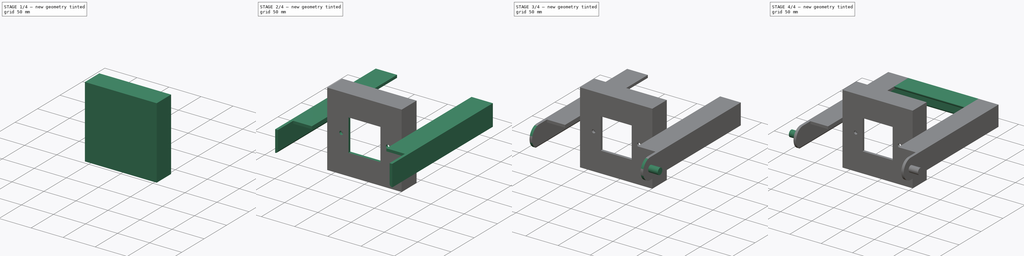
[diagram: build sequence overview — one tinted view per stage of 4, left to right]
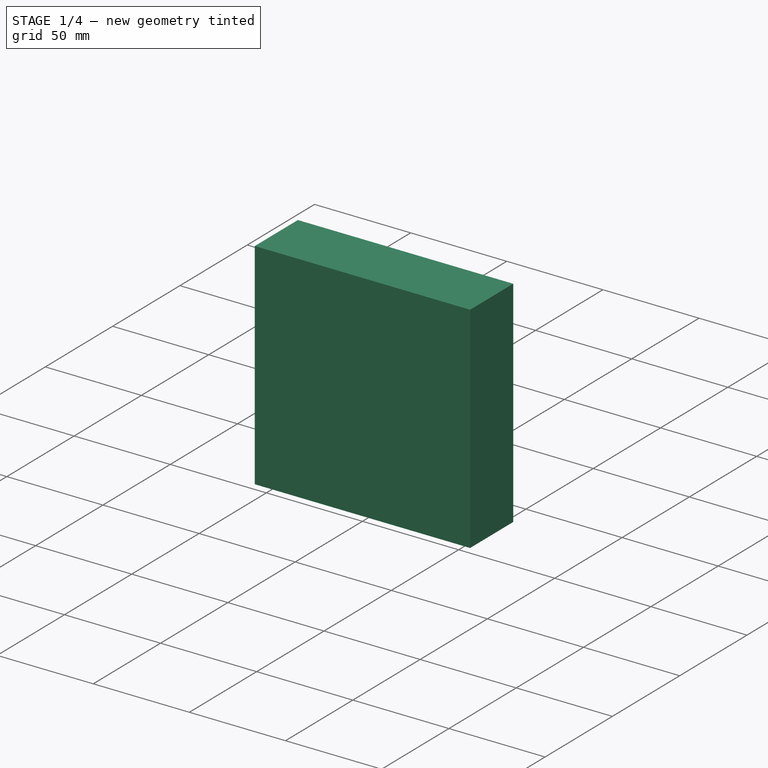
[diagram: stage 1 of 4 — iso view after this stage's code; geometry added in this stage tinted green]
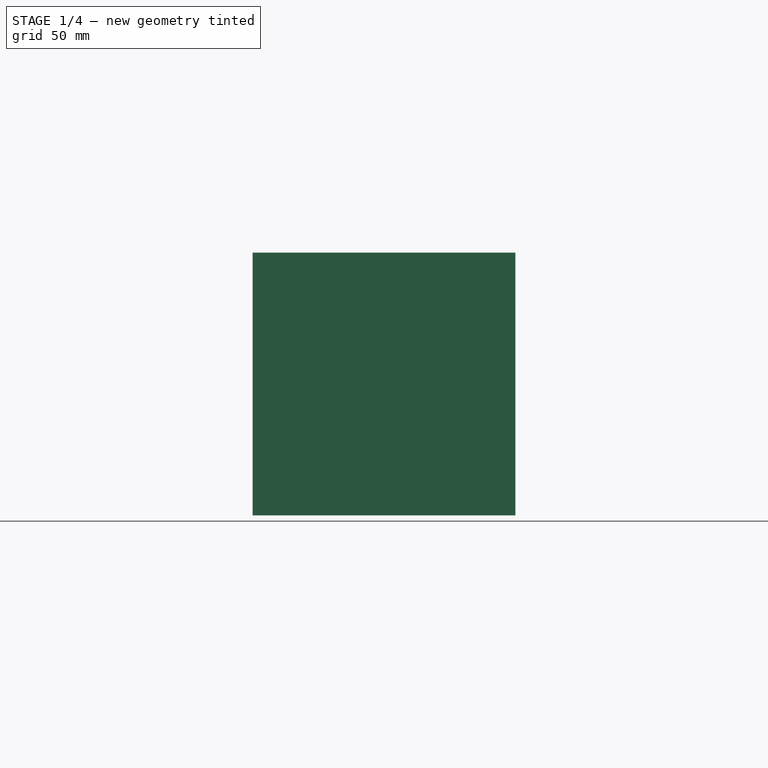
[diagram: stage 1 of 4 — front view after this stage's code; geometry added in this stage tinted green]
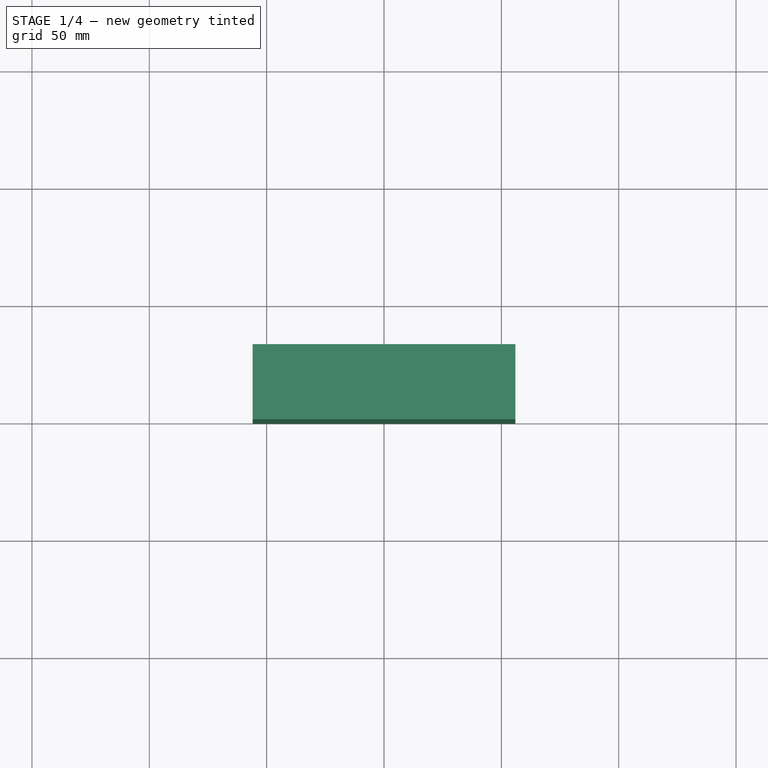
[diagram: stage 1 of 4 — top view after this stage's code; geometry added in this stage tinted green]
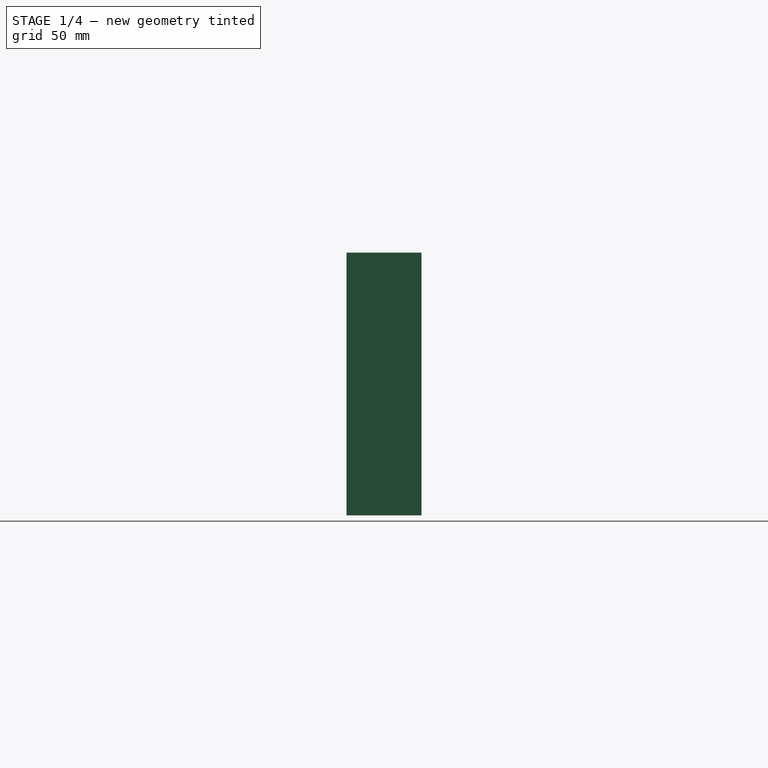
[diagram: stage 1 of 4 — right view after this stage's code; geometry added in this stage tinted green]
FCSTD DOCUMENT  (FreeCAD 0.19R)
Label: frame
License: All rights reserved
LicenseURL: http://en.wikipedia.org/wiki/All_rights_reserved
objects: Sketcher::SketchObject×10, PartDesign::Pad×6, PartDesign::CoordinateSystem×6, PartDesign::Pocket×4, PartDesign::Body×1
note: 37 computed .brp shape members not serialized (recipe doc carries the construction recipe); baked Part::Feature solids carry a one-line shape summary decoded from their .brp

FEATURE [Sketcher::SketchObject] Sketch
  FullyConstrained = true
  MapMode = 5
  Support = -> [XY_Plane]
  sketch-geometry (8):
    g0: LineSegment StartX=-56 StartY=32 StartZ=0 EndX=-56 EndY=0 EndZ=0
    g1: LineSegment StartX=56 StartY=32 StartZ=0 EndX=56 EndY=0 EndZ=0
    g2: LineSegment StartX=56 StartY=0 StartZ=0 EndX=-56 EndY=0 EndZ=0
    g3: LineSegment StartX=52 StartY=28 StartZ=0 EndX=52 EndY=4 EndZ=0
    g4: LineSegment StartX=52 StartY=4 StartZ=0 EndX=-52 EndY=4 EndZ=0
    g5: LineSegment StartX=-52 StartY=4 StartZ=0 EndX=-52 EndY=28 EndZ=0
    g6: ArcOfCircle CenterX=-56 CenterY=28 CenterZ=0 NormalX=0 NormalY=0 NormalZ=1 AngleXU=0 Radius=4 StartAngle=-3.64e-14 EndAngle=1.5708
    g7: ArcOfCircle CenterX=56 CenterY=28 CenterZ=0 NormalX=0 NormalY=0 NormalZ=1 AngleXU=0 Radius=4 StartAngle=1.5708 EndAngle=3.14159
  constraints (24):
    c: PointOnObject(g0,g-1)
    c: Vertical(g0)
    c: PointOnObject(g1,g-1)
    c: Vertical(g1)
    c: Coincident(g2,g1)
    c: Vertical(g3)
    c: Coincident(g4,g3)
    c: Horizontal(g4)
    c: Vertical(g5)
    c: DistanceX(g0,g1) = 112
    c: Symmetric(g0,g1,g-2)
    c: DistanceX(g3,g1) = 4
    c: DistanceY(g2,g4) = 4
    c: Symmetric(g5,g3,g-2)
    c: Coincident(g4,g5)
    c: Coincident(g2,g0)
    c: DistanceY(g4,g5) = 24
    c: DistanceY(g0,g0) = 32
    c: PointOnObject(g6,g0)
    c: Coincident(g6,g5)
    c: Coincident(g6,g0)
    c: PointOnObject(g7,g1)
    c: Coincident(g7,g3)
    c: Coincident(g7,g1)
FEATURE [PartDesign::Pad] Pad
  Direction = (1,1,1)
  Length = 112
  Length2 = 100
  Profile = -> Sketch
  Type = 0
FEATURE [Sketcher::SketchObject] Sketch001
  FullyConstrained = true
  MapMode = 5
  Placement = pos=(56,0,0) rot=(0.57735,0.57735,0.57735;2.0944rad)
  Support = -> [Pad]
  sketch-geometry (8):
    g0: LineSegment StartX=0 StartY=112 StartZ=0 EndX=32 EndY=112 EndZ=0
    g1: LineSegment StartX=0 StartY=108 StartZ=0 EndX=28 EndY=108 EndZ=0
    g2: LineSegment StartX=0 StartY=108 StartZ=0 EndX=0 EndY=112 EndZ=0
    g3: ArcOfCircle CenterX=28 CenterY=112 CenterZ=0 NormalX=0 NormalY=0 NormalZ=1 AngleXU=0 Radius=4 StartAngle=4.71239 EndAngle=6.28319
    g4: LineSegment StartX=0 StartY=0 StartZ=0 EndX=32 EndY=0 EndZ=0
    g5: LineSegment StartX=0 StartY=0 StartZ=0 EndX=0 EndY=4 EndZ=0
    g6: LineSegment StartX=0 StartY=4 StartZ=0 EndX=28 EndY=4 EndZ=0
    g7: ArcOfCircle CenterX=28 CenterY=0 CenterZ=0 NormalX=0 NormalY=0 NormalZ=1 AngleXU=0 Radius=4 StartAngle=0 EndAngle=1.5708
  constraints (25):
    c: PointOnObject(g0,g-2)
    c: Horizontal(g0)
    c: PointOnObject(g1,g-2)
    c: Horizontal(g1)
    c: Coincident(g2,g1)
    c: Coincident(g2,g0)
    c: DistanceX(g0,g0) = 32
    c: DistanceX(g1,g1) = 28
    c: DistanceY(g1,g0) = 4
    c: DistanceY(g-1,g0) = 112
    c: PointOnObject(g3,g0)
    c: Coincident(g3,g0)
    c: Coincident(g3,g1)
    c: Coincident(g4,g-1)
    c: PointOnObject(g4,g-1)
    c: DistanceX(g4,g4) = 32
    c: Coincident(g5,g4)
    c: PointOnObject(g5,g-2)
    c: Coincident(g6,g5)
    c: Horizontal(g6)
    c: DistanceY(g4,g5) = 4
    c: DistanceX(g5,g6) = 28
    c: PointOnObject(g7,g4)
    c: Coincident(g7,g6)
    c: Coincident(g7,g4)
FEATURE [PartDesign::Pad] Pad001
  BaseFeature = -> Pad
  Direction = (1,1,1)
  Length = 112
  Length2 = 100
  Profile = -> Sketch001
  Reversed = true
  Type = 0
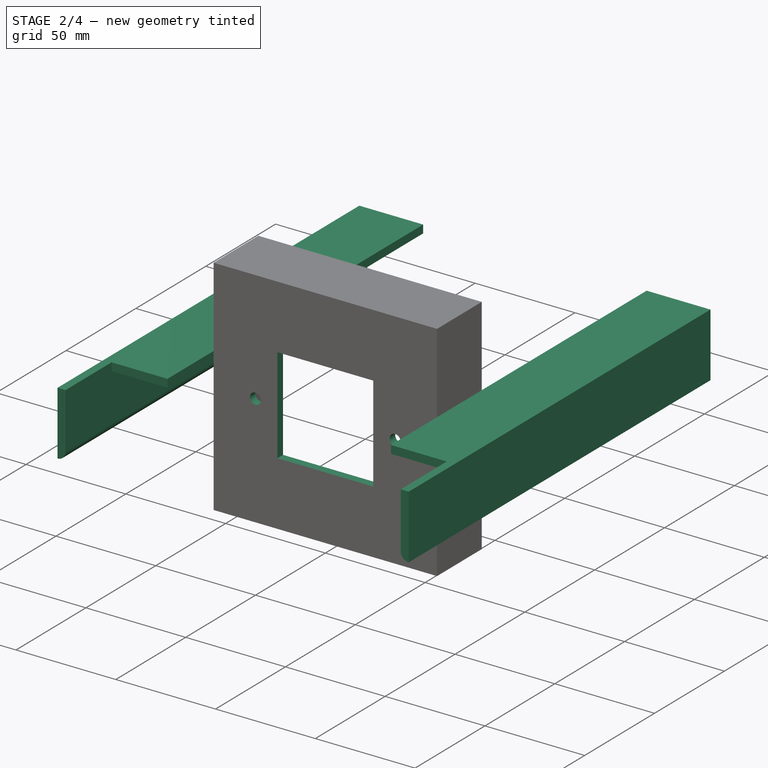
[diagram: stage 2 of 4 — iso view after this stage's code; geometry added in this stage tinted green]
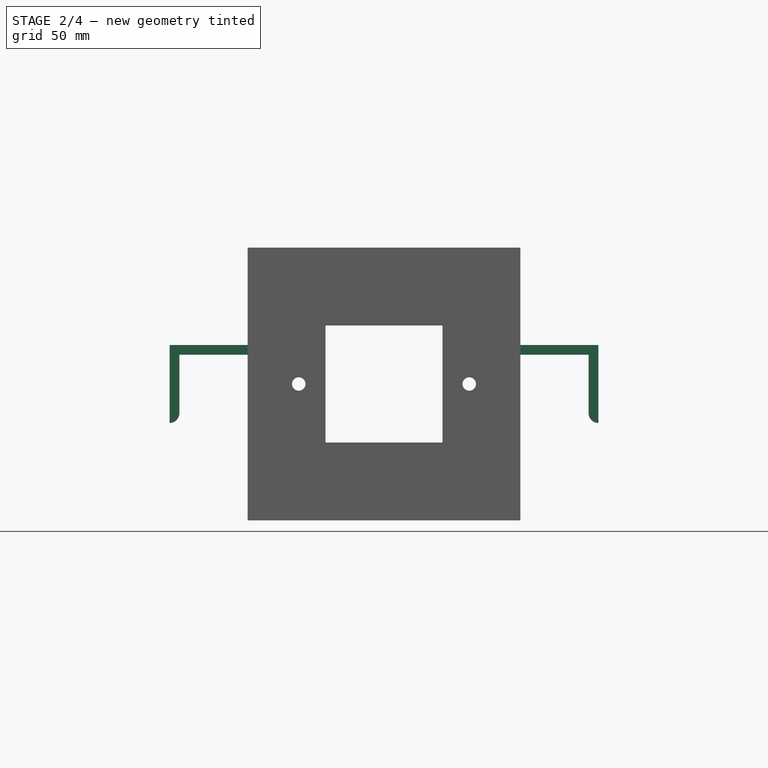
[diagram: stage 2 of 4 — front view after this stage's code; geometry added in this stage tinted green]
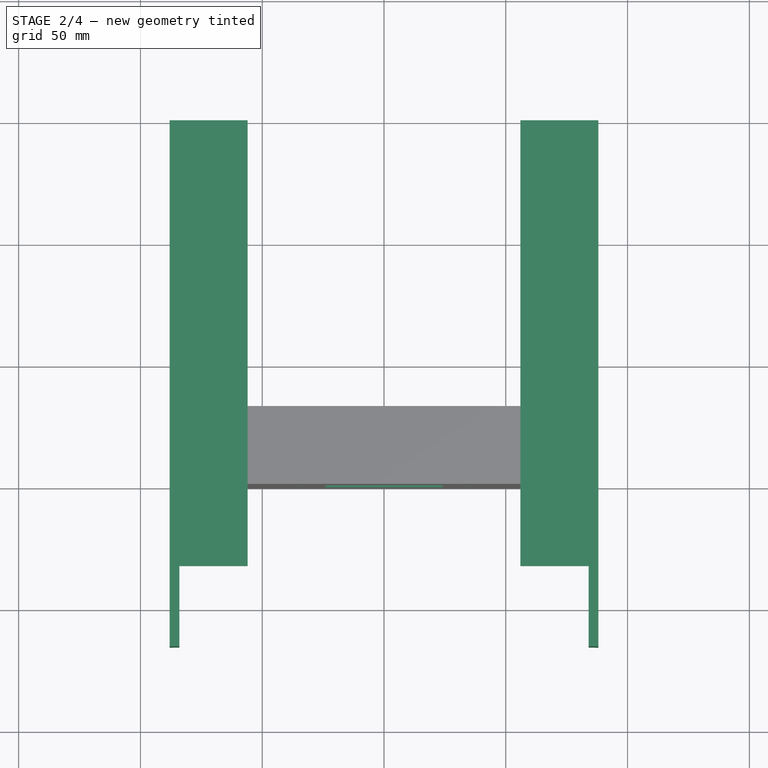
[diagram: stage 2 of 4 — top view after this stage's code; geometry added in this stage tinted green]
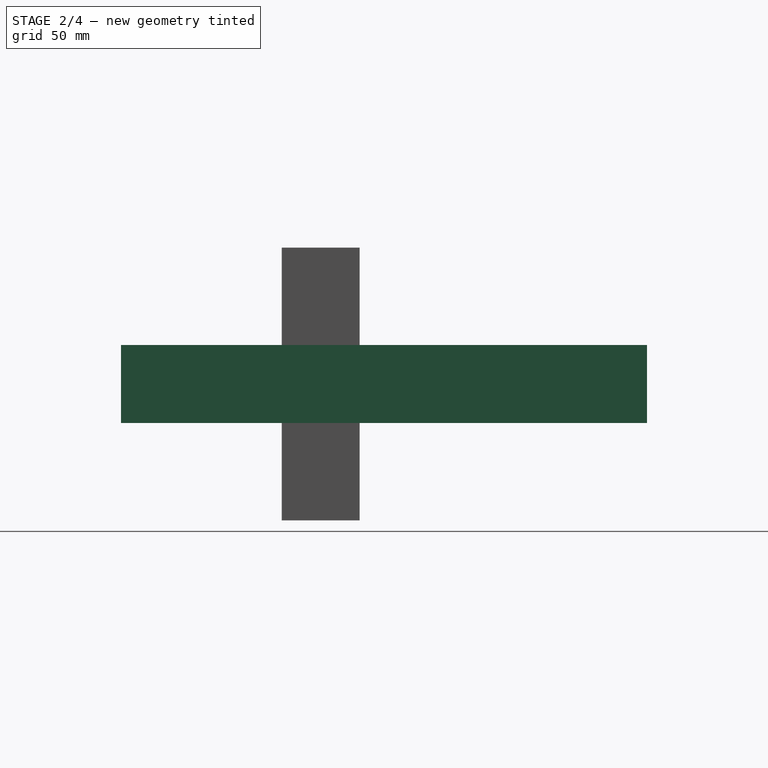
[diagram: stage 2 of 4 — right view after this stage's code; geometry added in this stage tinted green]
FEATURE [Sketcher::SketchObject] Sketch002
  ExternalGeometry = -> [Pad001]
  FullyConstrained = true
  MapMode = 5
  Placement = pos=(0,0,0) rot=(1,0,0;1.5708rad)
  Support = -> [Pad001]
  sketch-geometry (6):
    g0: LineSegment StartX=-24 StartY=80 StartZ=0 EndX=24 EndY=80 EndZ=0
    g1: LineSegment StartX=24 StartY=80 StartZ=0 EndX=24 EndY=32 EndZ=0
    g2: LineSegment StartX=24 StartY=32 StartZ=0 EndX=-24 EndY=32 EndZ=0
    g3: LineSegment StartX=-24 StartY=32 StartZ=0 EndX=-24 EndY=80 EndZ=0
    g4: Circle CenterX=-35 CenterY=56 CenterZ=0 NormalX=0 NormalY=0 NormalZ=1 AngleXU=0 Radius=2.75
    g5: Circle CenterX=35 CenterY=56 CenterZ=0 NormalX=0 NormalY=0 NormalZ=1 AngleXU=0 Radius=2.75
  constraints (16):
    c: Coincident(g0,g1)
    c: Coincident(g1,g2)
    c: Coincident(g2,g3)
    c: Coincident(g3,g0)
    c: Horizontal(g0)
    c: Vertical(g1)
    c: Vertical(g3)
    c: DistanceX(g1,g-4) = 32
    c: DistanceY(g-4,g2) = 32
    c: Symmetric(g2,g1,g-2)
    c: Equal(g2,g3)
    c: Equal(g5,g4)
    c: Diameter(g5) = 5.5
    c: Symmetric(g5,g4,g-2)
    c: DistanceX(g4,g5) = 70
    c: DistanceY(g-4,g4) = 56
FEATURE [PartDesign::Pocket] Pocket
  BaseFeature = -> Pad001
  Length = 5
  Length2 = 100
  Profile = -> Sketch002
  Type = 1
FEATURE [PartDesign::CoordinateSystem] LCS_hole1
  AttacherType = Attacher::AttachEngine3D
  MapMode = 11
  Placement = pos=(-35,4,56) rot=(0.57735,-0.57735,0.57735;2.0944rad)
  Support = -> [Pocket]
FEATURE [PartDesign::CoordinateSystem] LCS_hole2
  AttacherType = Attacher::AttachEngine3D
  MapMode = 11
  Placement = pos=(35,4,56) rot=(0.57735,-0.57735,0.57735;2.0944rad)
  Support = -> [Pocket]
FEATURE [PartDesign::CoordinateSystem] LCS_1
  AttacherType = Attacher::AttachEngine3D
  MapMode = 7
  Placement = pos=(56,0,0) rot=(0.57735,0.57735,0.57735;2.0944rad)
  Support = -> [Pocket]
FEATURE [PartDesign::CoordinateSystem] LCS_front1
  AttacherType = Attacher::AttachEngine3D
  MapMode = 11
  Placement = pos=(-35,0,56) rot=(0.57735,-0.57735,0.57735;2.0944rad)
  Support = -> [Pocket]
FEATURE [PartDesign::CoordinateSystem] LCS_front2
  AttacherType = Attacher::AttachEngine3D
  MapMode = 11
  Placement = pos=(35,0,56) rot=(0.57735,-0.57735,0.57735;2.0944rad)
  Support = -> [Pocket]
FEATURE [Sketcher::SketchObject] Sketch003
  ExternalGeometry = -> [Pocket]
  FullyConstrained = true
  MapMode = 5
  Placement = pos=(0,0,0) rot=(1,0,0;1.5708rad)
  Support = -> [Pocket]
  sketch-geometry (12):
    g0: LineSegment StartX=56 StartY=72 StartZ=0 EndX=56 EndY=68 EndZ=0
    g1: LineSegment StartX=-56 StartY=72 StartZ=0 EndX=-56 EndY=68 EndZ=0
    g2: LineSegment StartX=-56 StartY=72 StartZ=0 EndX=-88 EndY=72 EndZ=0
    g3: LineSegment StartX=-88 StartY=72 StartZ=0 EndX=-88 EndY=40 EndZ=0
    g4: LineSegment StartX=56 StartY=72 StartZ=0 EndX=88 EndY=72 EndZ=0
    g5: LineSegment StartX=88 StartY=72 StartZ=0 EndX=88 EndY=40 EndZ=0
    g6: LineSegment StartX=56 StartY=68 StartZ=0 EndX=84 EndY=68 EndZ=0
    g7: LineSegment StartX=84 StartY=68 StartZ=0 EndX=84 EndY=44 EndZ=0
    g8: LineSegment StartX=-56 StartY=68 StartZ=0 EndX=-84 EndY=68 EndZ=0
    g9: LineSegment StartX=-84 StartY=68 StartZ=0 EndX=-84 EndY=44 EndZ=0
    g10: ArcOfCircle CenterX=-88 CenterY=44 CenterZ=0 NormalX=0 NormalY=0 NormalZ=1 AngleXU=0 Radius=4 StartAngle=4.71239 EndAngle=6.28319
    g11: ArcOfCircle CenterX=88 CenterY=44 CenterZ=0 NormalX=0 NormalY=0 NormalZ=1 AngleXU=0 Radius=4 StartAngle=3.14159 EndAngle=4.71239
  constraints (37):
    c: PointOnObject(g0,g-3)
    c: PointOnObject(g0,g-3)
    c: PointOnObject(g1,g-4)
    c: Coincident(g2,g1)
    c: Horizontal(g2)
    c: Coincident(g3,g2)
    c: Vertical(g3)
    c: Coincident(g4,g0)
    c: Horizontal(g4)
    c: Coincident(g5,g4)
    c: Vertical(g5)
    c: Horizontal(g6)
    c: Coincident(g7,g6)
    c: Vertical(g7)
    c: Coincident(g8,g1)
    c: Horizontal(g8)
    c: Coincident(g9,g8)
    c: Vertical(g9)
    c: Coincident(g0,g6)
    c: Equal(g0,g1)
    c: DistanceY(g1,g1) = 4
    c: DistanceX(g7,g5) = 4
    c: Equal(g4,g5)
    c: Equal(g5,g2)
    c: Equal(g2,g3)
    c: DistanceY(g3,g2) = 32
    c: DistanceX(g3,g9) = 4
    c: DistanceY(g9,g8) = 24
    c: DistanceY(g1,g-5) = 40
    c: Symmetric(g1,g0,g-2)
    c: Equal(g9,g7)
    c: PointOnObject(g10,g3)
    c: Coincident(g10,g9)
    c: Coincident(g10,g3)
    c: PointOnObject(g11,g5)
    c: Coincident(g11,g5)
    c: Coincident(g11,g7)
FEATURE [PartDesign::Pad] Pad002
  BaseFeature = -> Pocket
  Direction = (1,1,1)
  Length = 66
  Length2 = 150
  Profile = -> Sketch003
  Type = 4
FEATURE [Sketcher::SketchObject] Sketch004
  ExternalGeometry = -> [Pad002]
  FullyConstrained = true
  MapMode = 5
  Placement = pos=(0,1.58e-14,72) rot=(0,0,1;0rad)
  Support = -> [Pad002]
  sketch-geometry (8):
    g0: LineSegment StartX=56 StartY=-66 StartZ=0 EndX=84 EndY=-66 EndZ=0
    g1: LineSegment StartX=84 StartY=-66 StartZ=0 EndX=84 EndY=-33 EndZ=0
    g2: LineSegment StartX=84 StartY=-33 StartZ=0 EndX=56 EndY=-33 EndZ=0
    g3: LineSegment StartX=56 StartY=-33 StartZ=0 EndX=56 EndY=-66 EndZ=0
    g4: LineSegment StartX=-84 StartY=-66 StartZ=0 EndX=-56 EndY=-66 EndZ=0
    g5: LineSegment StartX=-56 StartY=-66 StartZ=0 EndX=-56 EndY=-33 EndZ=0
    g6: LineSegment StartX=-56 StartY=-33 StartZ=0 EndX=-84 EndY=-33 EndZ=0
    g7: LineSegment StartX=-84 StartY=-33 StartZ=0 EndX=-84 EndY=-66 EndZ=0
  constraints (22):
    c: Coincident(g0,g1)
    c: Coincident(g1,g2)
    c: Coincident(g2,g3)
    c: Coincident(g3,g0)
    c: Horizontal(g0)
    c: Horizontal(g2)
    c: Vertical(g1)
    c: Vertical(g3)
    c: Coincident(g0,g-4)
    c: DistanceX(g2,g1) = 28
    c: DistanceY(g0,g2) = 33
    c: Coincident(g4,g5)
    c: Coincident(g5,g6)
    c: Coincident(g6,g7)
    c: Coincident(g7,g4)
    c: Horizontal(g4)
    c: Horizontal(g6)
    c: Vertical(g5)
    c: Vertical(g7)
    c: Equal(g3,g7)
    c: Equal(g6,g2)
    c: Coincident(g4,g-3)
FEATURE [PartDesign::Pocket] Pocket001
  BaseFeature = -> Pad002
  Length = 5
  Length2 = 100
  Profile = -> Sketch004
  Type = 1
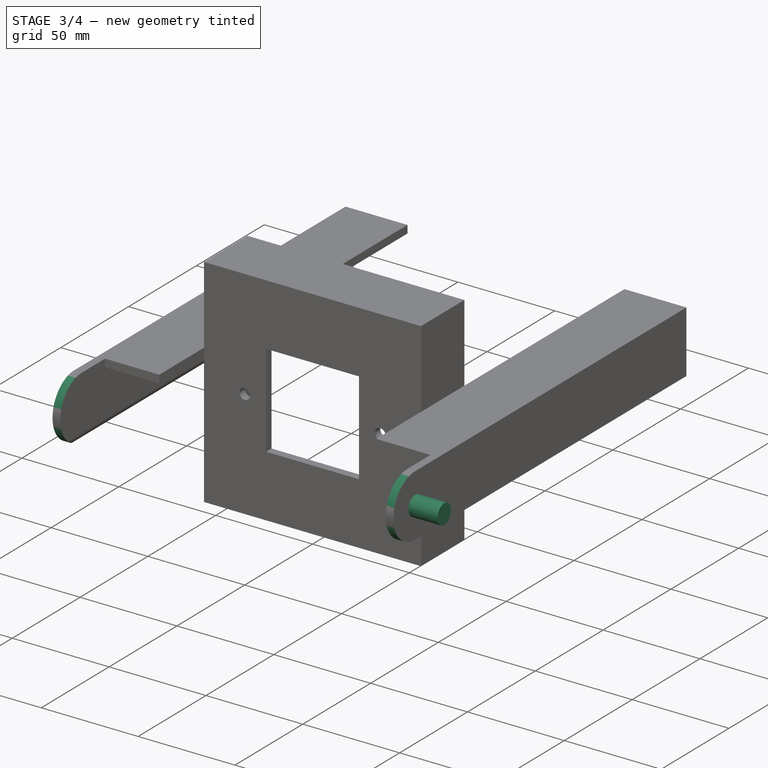
[diagram: stage 3 of 4 — iso view after this stage's code; geometry added in this stage tinted green]
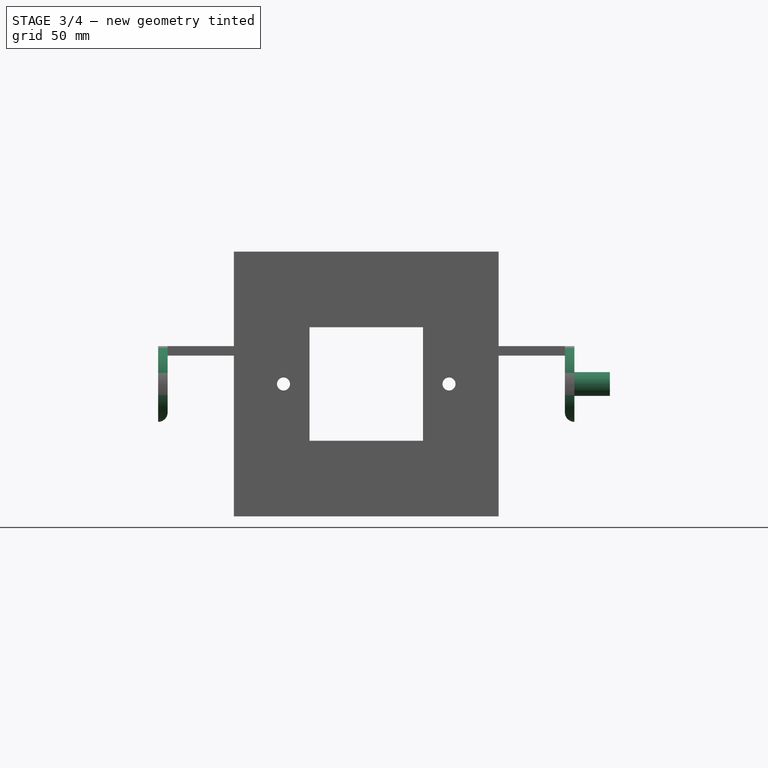
[diagram: stage 3 of 4 — front view after this stage's code; geometry added in this stage tinted green]
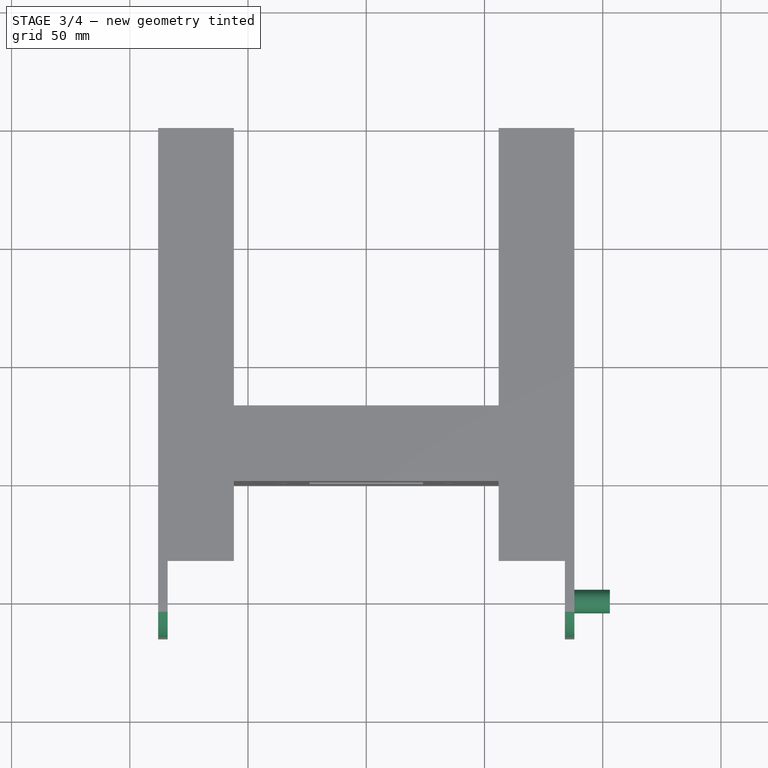
[diagram: stage 3 of 4 — top view after this stage's code; geometry added in this stage tinted green]
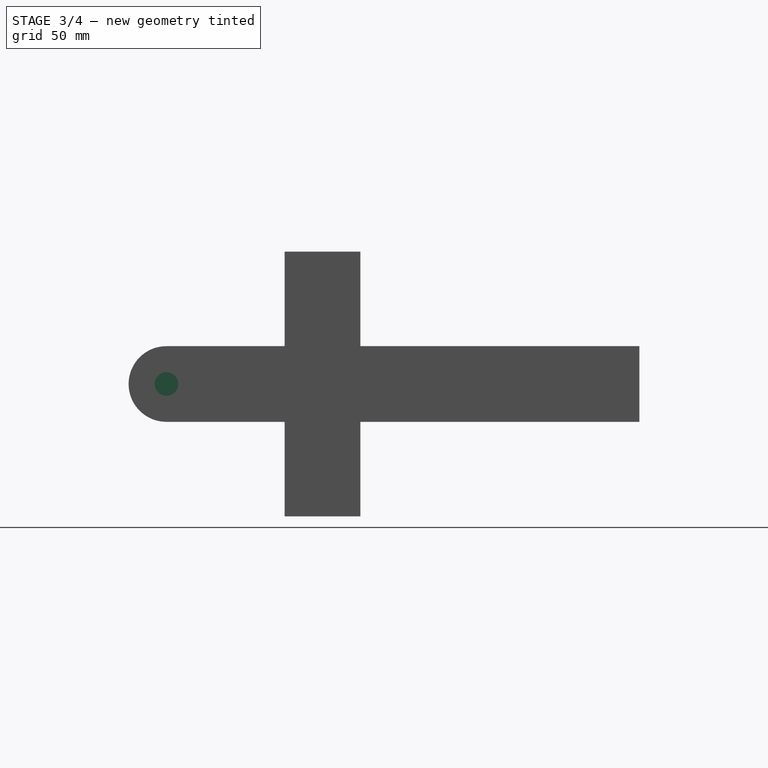
[diagram: stage 3 of 4 — right view after this stage's code; geometry added in this stage tinted green]
FEATURE [Sketcher::SketchObject] Sketch005
  ExternalGeometry = -> [Pocket001]
  FullyConstrained = true
  MapMode = 5
  Placement = pos=(88,0,0) rot=(0.57735,0.57735,0.57735;2.0944rad)
  Support = -> [Pocket001]
  sketch-geometry (3):
    g0: LineSegment StartX=-66 StartY=72 StartZ=0 EndX=-50 EndY=72 EndZ=0
    g1: LineSegment StartX=-66 StartY=72 StartZ=0 EndX=-66 EndY=56 EndZ=0
    g2: ArcOfCircle CenterX=-50 CenterY=56 CenterZ=0 NormalX=0 NormalY=0 NormalZ=1 AngleXU=0 Radius=16 StartAngle=1.5708 EndAngle=3.14159
  constraints (9):
    c: Horizontal(g0)
    c: DistanceX(g-3,g0) = 16
    c: PointOnObject(g1,g-3)
    c: Equal(g0,g1)
    c: DistanceY(g2,g0) = 16
    c: Coincident(g2,g0)
    c: Coincident(g2,g1)
    c: Coincident(g-3,g1)
    c: Coincident(g0,g1)
FEATURE [PartDesign::Pocket] Pocket002
  BaseFeature = -> Pocket001
  Length = 5
  Length2 = 100
  Profile = -> Sketch005
  Type = 1
FEATURE [Sketcher::SketchObject] Sketch006
  ExternalGeometry = -> [Pocket002]
  FullyConstrained = true
  MapMode = 5
  Placement = pos=(88,0,0) rot=(0.57735,0.57735,0.57735;2.0944rad)
  Support = -> [Pocket002]
  sketch-geometry (3):
    g0: LineSegment StartX=-50 StartY=40 StartZ=0 EndX=-66 EndY=40 EndZ=0
    g1: LineSegment StartX=-66 StartY=40 StartZ=0 EndX=-66 EndY=56 EndZ=0
    g2: ArcOfCircle CenterX=-50 CenterY=56 CenterZ=0 NormalX=0 NormalY=0 NormalZ=1 AngleXU=0 Radius=16 StartAngle=3.14159 EndAngle=4.71239
  constraints (9):
    c: PointOnObject(g0,g-3)
    c: Coincident(g0,g-3)
    c: Coincident(g1,g0)
    c: Vertical(g1)
    c: Coincident(g2,g0)
    c: Coincident(g2,g1)
    c: Equal(g0,g1)
    c: DistanceX(g0,g0) = 16
    c: DistanceX(g1,g2) = 16
FEATURE [PartDesign::Pocket] Pocket003
  BaseFeature = -> Pocket002
  Length = 5
  Length2 = 100
  Profile = -> Sketch006
  Type = 1
FEATURE [Sketcher::SketchObject] Sketch007
  ExternalGeometry = -> [Pocket003]
  FullyConstrained = true
  MapMode = 5
  Placement = pos=(88,0,0) rot=(0.57735,0.57735,0.57735;2.0944rad)
  Support = -> [Pocket003]
  sketch-geometry (1):
    g0: Circle CenterX=-50 CenterY=56 CenterZ=0 NormalX=0 NormalY=0 NormalZ=1 AngleXU=0 Radius=5
  constraints (2):
    c: Coincident(g0,g-3)
    c: Diameter(g0) = 10
FEATURE [PartDesign::Pad] Pad003
  BaseFeature = -> Pocket003
  Direction = (1,1,1)
  Length = 15
  Length2 = 100
  Profile = -> Sketch007
  Type = 0
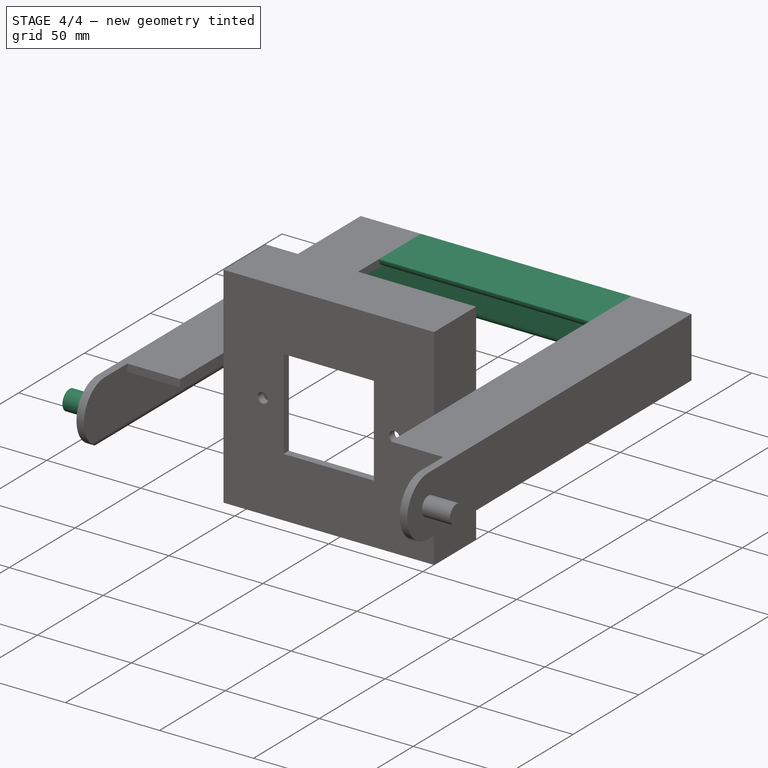
[diagram: stage 4 of 4 — iso view after this stage's code; geometry added in this stage tinted green]
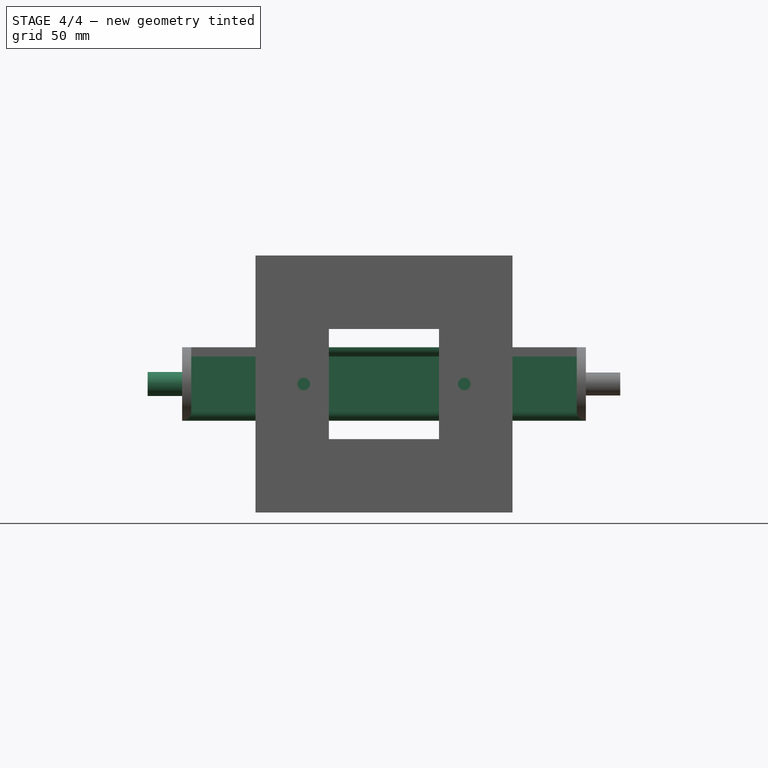
[diagram: stage 4 of 4 — front view after this stage's code; geometry added in this stage tinted green]
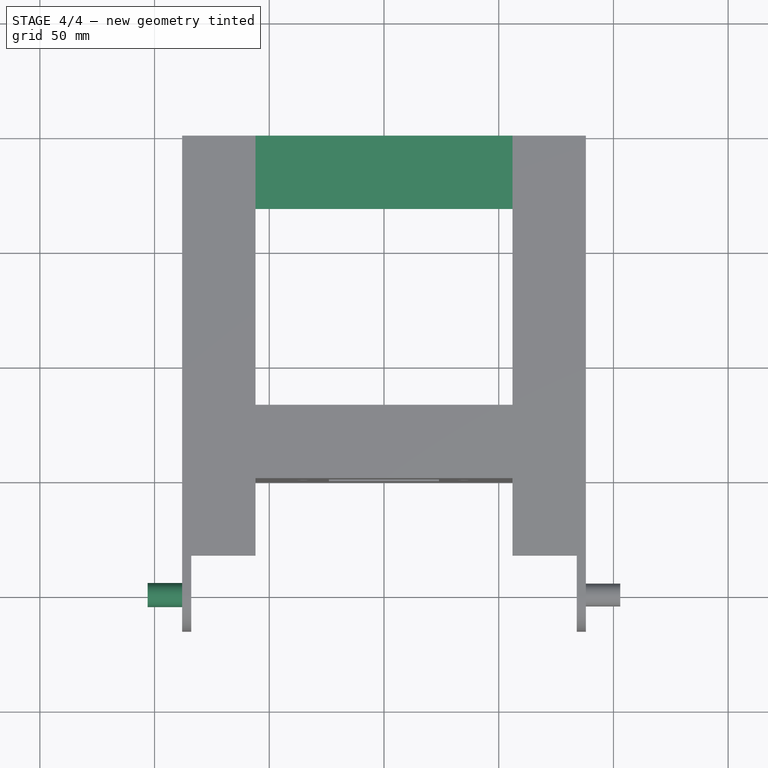
[diagram: stage 4 of 4 — top view after this stage's code; geometry added in this stage tinted green]
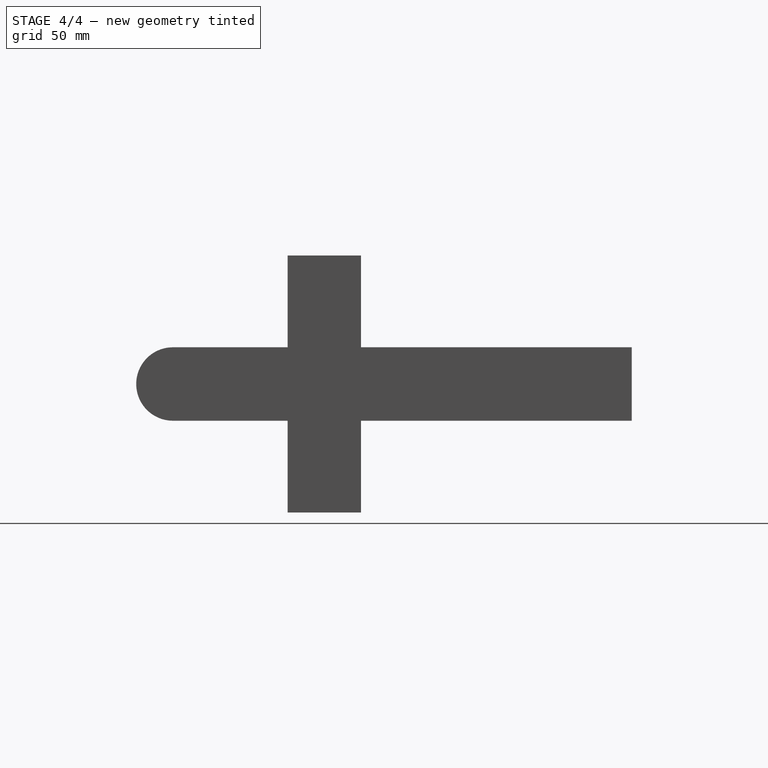
[diagram: stage 4 of 4 — right view after this stage's code; geometry added in this stage tinted green]
FEATURE [Sketcher::SketchObject] Sketch008
  ExternalGeometry = -> [Pad003]
  FullyConstrained = true
  MapMode = 5
  Placement = pos=(-88,0,0) rot=(0.57735,-0.57735,-0.57735;2.0944rad)
  Support = -> [Pad003]
  sketch-geometry (1):
    g0: Circle CenterX=50 CenterY=56 CenterZ=0 NormalX=0 NormalY=0 NormalZ=1 AngleXU=0 Radius=5.25
  constraints (2):
    c: Coincident(g0,g-3)
    c: Diameter(g0) = 10.5
FEATURE [PartDesign::Pad] Pad004
  BaseFeature = -> Pad003
  Direction = (1,1,1)
  Length = 15
  Length2 = 100
  Profile = -> Sketch008
  Type = 0
FEATURE [PartDesign::CoordinateSystem] LCS_axis
  AttacherType = Attacher::AttachEngine3D
  MapMode = 11
  Placement = pos=(88,-50,56) rot=(0.707107,0,0.707107;3.14159rad)
  Support = -> [Pad004]
FEATURE [Sketcher::SketchObject] Sketch009
  ExternalGeometry = -> [Pad004]
  FullyConstrained = true
  MapMode = 5
  Placement = pos=(88,0,0) rot=(0.57735,0.57735,0.57735;2.0944rad)
  Support = -> [Pad004]
  sketch-geometry (6):
    g0: LineSegment StartX=150 StartY=40 StartZ=0 EndX=150 EndY=72 EndZ=0
    g1: LineSegment StartX=150 StartY=72 StartZ=0 EndX=118 EndY=72 EndZ=0
    g2: LineSegment StartX=146 StartY=68 StartZ=0 EndX=122 EndY=68 EndZ=0
    g3: LineSegment StartX=146 StartY=68 StartZ=0 EndX=146 EndY=44 EndZ=0
    g4: ArcOfCircle CenterX=122 CenterY=72 CenterZ=0 NormalX=0 NormalY=0 NormalZ=1 AngleXU=0 Radius=4 StartAngle=3.14159 EndAngle=4.71239
    g5: ArcOfCircle CenterX=150 CenterY=44 CenterZ=0 NormalX=0 NormalY=0 NormalZ=1 AngleXU=0 Radius=4 StartAngle=3.14159 EndAngle=4.71239
  constraints (18):
    c: Coincident(g0,g-3)
    c: Coincident(g0,g-3)
    c: Coincident(g1,g0)
    c: Horizontal(g1)
    c: Horizontal(g2)
    c: Coincident(g3,g2)
    c: Vertical(g3)
    c: Equal(g0,g1)
    c: Equal(g2,g3)
    c: DistanceX(g2,g2) = 24
    c: DistanceY(g2,g0) = 4
    c: DistanceX(g2,g0) = 4
    c: PointOnObject(g4,g1)
    c: Coincident(g4,g2)
    c: Coincident(g4,g1)
    c: PointOnObject(g5,g0)
    c: Coincident(g5,g3)
    c: Coincident(g5,g0)
FEATURE [PartDesign::Pad] Pad005
  BaseFeature = -> Pad004
  Direction = (1,1,1)
  Length = 176
  Length2 = 100
  Profile = -> Sketch009
  Reversed = true
  Type = 0
FEATURE [PartDesign::Body] Body
  Group = -> [Sketch,Pad,Sketch001,Pad001,Sketch002,Pocket,LCS_hole1,LCS_hole2,LCS_1,LCS_front1,LCS_front2,Sketch003,Pad002,Sketch004,Pocket001,Sketch005,Pocket002,Sketch006,Pocket003,Sketch007,Pad003,Sketch008,Pad004,LCS_axis,Sketch009,Pad005]
  Origin = -> Origin
  Tip = -> Pad005
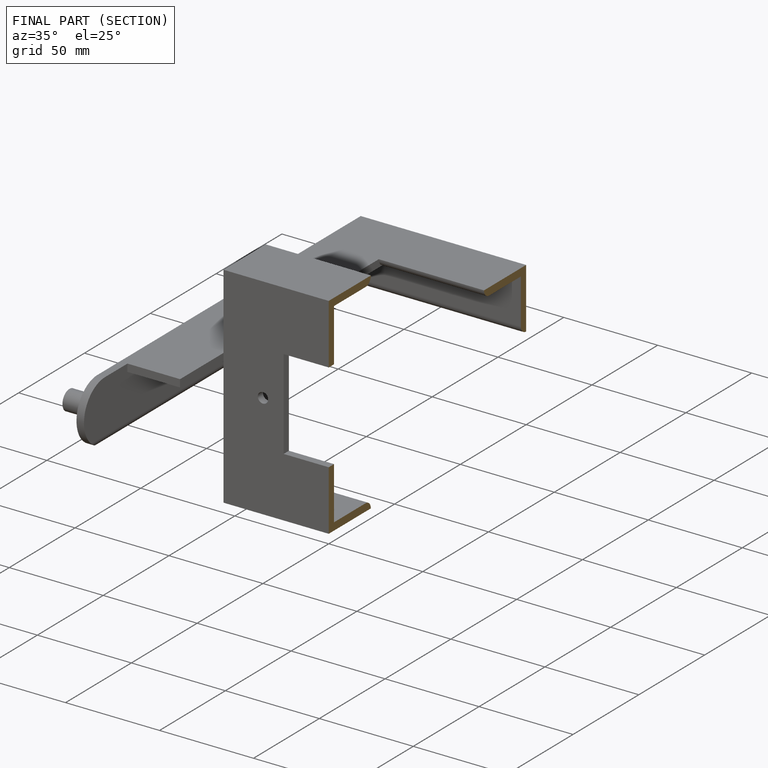
[diagram: finished part — half-section view (interior)]
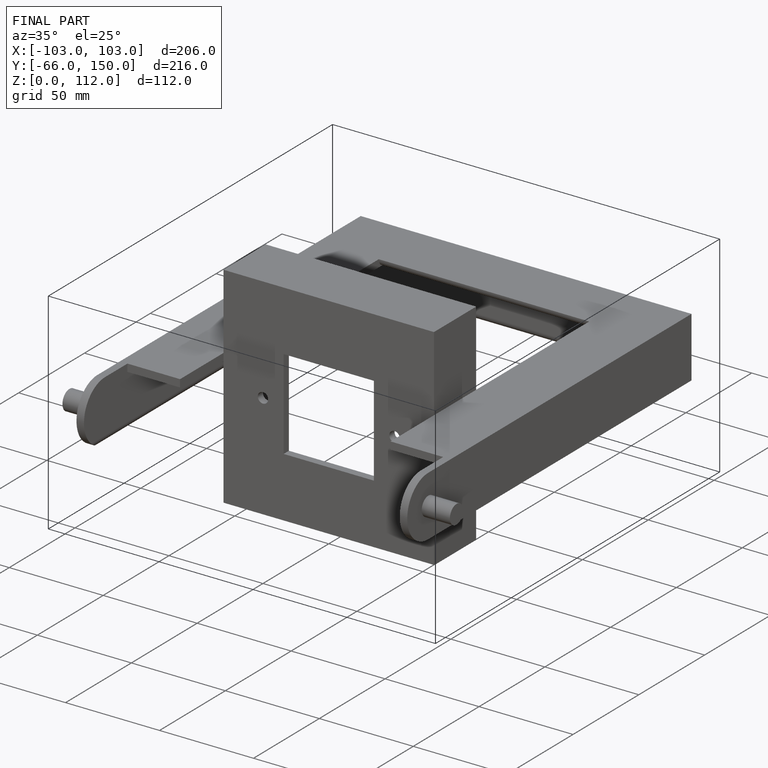
[diagram: finished part — iso view with bounding-box wireframe]
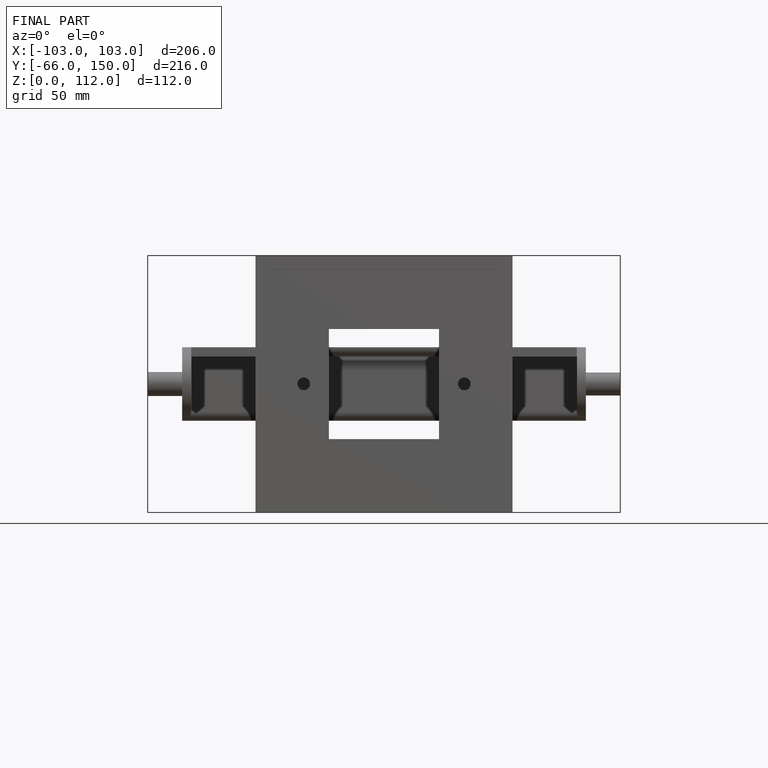
[diagram: finished part — front view with bounding-box wireframe]
